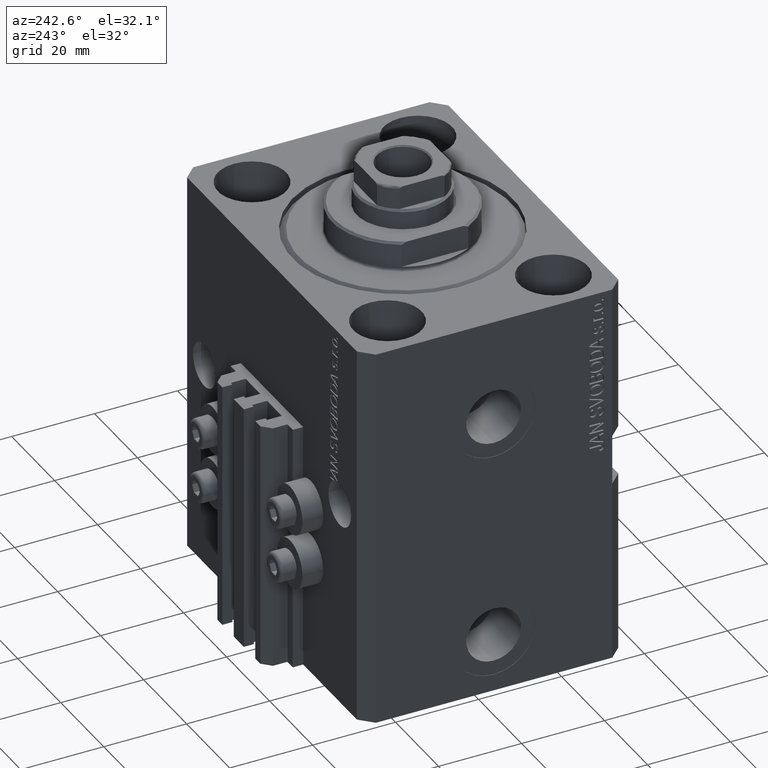
[diagram: clean part render]
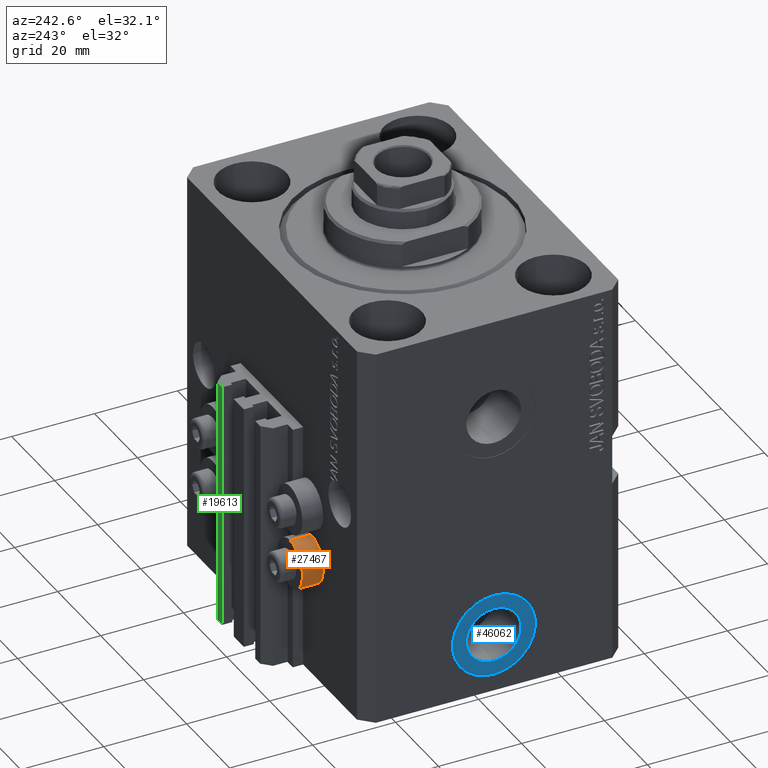
[diagram: same view with three faces highlighted in distinct colors, each labeled with its STEP entity id]
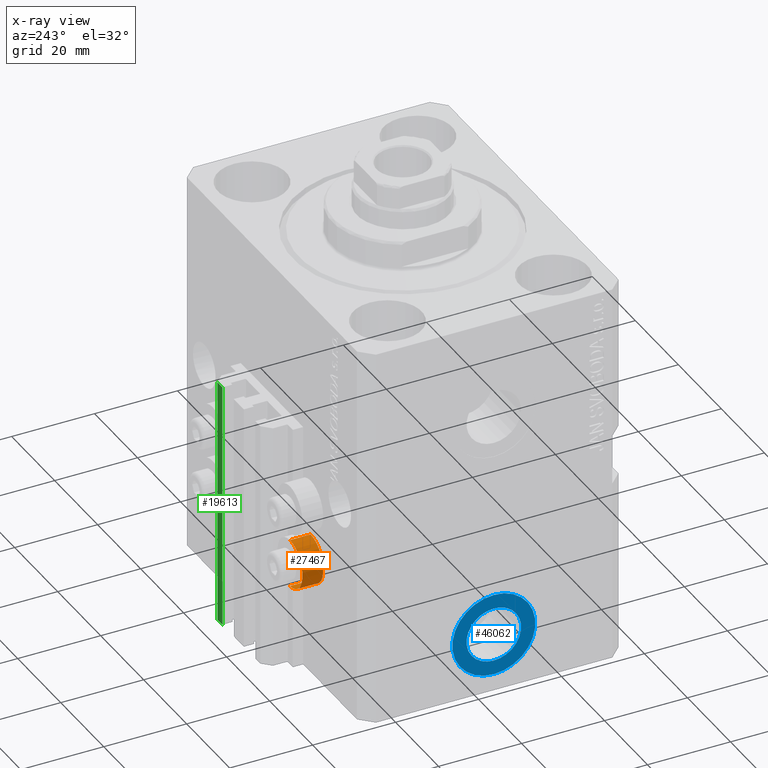
[diagram: x-ray of the same camera — body ghosted, the three highlighted faces saturated]
A machine part, auxiliary view with three faces highlighted in distinct colors.
The next image is the same camera in x-ray (body ghosted, the three faces saturated) — at least one of them is partly hidden behind the body in this view.
Their STEP definitions:

[orange] entity #27467 — the highlighted cylindrical surface (edge-blend (fillet) strip) has radius 5.8 mm, axis along (0, 1, 0).
#340 = ORIENTED_EDGE ( 'NONE', *, *, #27621, .T. ) ;
#3191 = DIRECTION ( 'NONE',  ( 0.000000000000000000, 0.000000000000000000, -1.000000000000000000 ) ) ;
#4283 = AXIS2_PLACEMENT_3D ( 'NONE', #14943, #36385, #3191 ) ;
#6458 = CARTESIAN_POINT ( 'NONE',  ( -18.00000000000000355, 36.49999999996099120, -69.79999999999999716 ) ) ;
#6742 = ORIENTED_EDGE ( 'NONE', *, *, #21574, .F. ) ;
#7576 = EDGE_CURVE ( 'NONE', #13437, #29349, #9294, .T. ) ;
#7731 = VERTEX_POINT ( 'NONE', #34051 ) ;
#8815 = VERTEX_POINT ( 'NONE', #42822 ) ;
#8933 = DIRECTION ( 'NONE',  ( 0.000000000000000000, 0.000000000000000000, -1.000000000000000000 ) ) ;
#9294 = LINE ( 'NONE', #12674, #21343 ) ;
#10115 = CIRCLE ( 'NONE', #26251, 5.799999999999999822 ) ;
#12674 = CARTESIAN_POINT ( 'NONE',  ( -18.00000000000000355, 36.49999999996099120, -69.79999999999999716 ) ) ;
#13394 = ORIENTED_EDGE ( 'NONE', *, *, #39841, .T. ) ;
#13437 = VERTEX_POINT ( 'NONE', #22368 ) ;
#13495 = CIRCLE ( 'NONE', #4283, 5.799999999999999822 ) ;
#13697 = AXIS2_PLACEMENT_3D ( 'NONE', #40041, #17908, #29453 ) ;
#14943 = CARTESIAN_POINT ( 'NONE',  ( -18.00000000000000355, 31.50000000000000000, -64.00000000000000000 ) ) ;
#17530 = VECTOR ( 'NONE', #33418, 1000.000000000000000 ) ;
#17908 = DIRECTION ( 'NONE',  ( 0.000000000000000000, 1.000000000000000000, 0.000000000000000000 ) ) ;
#19999 = CARTESIAN_POINT ( 'NONE',  ( -18.00000000000000355, 36.49999999996099120, -64.00000000000000000 ) ) ;
#20475 = ORIENTED_EDGE ( 'NONE', *, *, #7576, .F. ) ;
#21343 = VECTOR ( 'NONE', #27346, 1000.000000000000000 ) ;
#21574 = EDGE_CURVE ( 'NONE', #7731, #13437, #13495, .T. ) ;
#22368 = CARTESIAN_POINT ( 'NONE',  ( -18.00000000000000355, 31.50000000000000000, -69.79999999999999716 ) ) ;
#25601 = FACE_OUTER_BOUND ( 'NONE', #35134, .T. ) ;
#26196 = CARTESIAN_POINT ( 'NONE',  ( -18.00000000000000355, 36.49999999996099120, -58.20000000000000284 ) ) ;
#26251 = AXIS2_PLACEMENT_3D ( 'NONE', #19999, #38299, #8933 ) ;
#27346 = DIRECTION ( 'NONE',  ( 0.000000000000000000, 1.000000000000000000, 0.000000000000000000 ) ) ;
#27467 = ADVANCED_FACE ( 'NONE', ( #25601 ), #40266, .T. ) ;
#27621 = EDGE_CURVE ( 'NONE', #7731, #8815, #30035, .T. ) ;
#29349 = VERTEX_POINT ( 'NONE', #6458 ) ;
#29453 = DIRECTION ( 'NONE',  ( 0.000000000000000000, 0.000000000000000000, -1.000000000000000000 ) ) ;
#30035 = LINE ( 'NONE', #26196, #17530 ) ;
#33418 = DIRECTION ( 'NONE',  ( 0.000000000000000000, 1.000000000000000000, 0.000000000000000000 ) ) ;
#34051 = CARTESIAN_POINT ( 'NONE',  ( -18.00000000000000355, 31.50000000000000000, -58.20000000000000284 ) ) ;
#35134 = EDGE_LOOP ( 'NONE', ( #6742, #340, #13394, #20475 ) ) ;
#36385 = DIRECTION ( 'NONE',  ( -0.000000000000000000, -1.000000000000000000, -0.000000000000000000 ) ) ;
#38299 = DIRECTION ( 'NONE',  ( -0.000000000000000000, -1.000000000000000000, -0.000000000000000000 ) ) ;
#39841 = EDGE_CURVE ( 'NONE', #8815, #29349, #10115, .T. ) ;
#40041 = CARTESIAN_POINT ( 'NONE',  ( -18.00000000000000355, 36.49999999996099120, -64.00000000000000000 ) ) ;
#40266 = CYLINDRICAL_SURFACE ( 'NONE', #13697, 5.799999999999999822 ) ;
#42822 = CARTESIAN_POINT ( 'NONE',  ( -18.00000000000000355, 36.49999999996099120, -58.20000000000000284 ) ) ;

[blue] entity #46062 — the highlighted planar face has unit normal (-1, 0, 0).
#880 = DIRECTION ( 'NONE',  ( -1.000000000000000000, 0.000000000000000000, 0.000000000000000000 ) ) ;
#1767 = AXIS2_PLACEMENT_3D ( 'NONE', #27166, #38474, #20408 ) ;
#1896 = FACE_BOUND ( 'NONE', #40298, .T. ) ;
#2878 = DIRECTION ( 'NONE',  ( -1.000000000000000000, 0.000000000000000000, 0.000000000000000000 ) ) ;
#3298 = VERTEX_POINT ( 'NONE', #8473 ) ;
#5277 = FACE_OUTER_BOUND ( 'NONE', #6057, .T. ) ;
#5308 = CARTESIAN_POINT ( 'NONE',  ( -42.39999999999999858, -9.674709713264090904E-15, -79.00000000000000000 ) ) ;
#5715 = DIRECTION ( 'NONE',  ( -1.000000000000000000, 0.000000000000000000, 0.000000000000000000 ) ) ;
#5784 = DIRECTION ( 'NONE',  ( 0.000000000000000000, 0.000000000000000000, 1.000000000000000000 ) ) ;
#5951 = DIRECTION ( 'NONE',  ( 0.000000000000000000, 0.000000000000000000, 1.000000000000000000 ) ) ;
#6057 = EDGE_LOOP ( 'NONE', ( #20281, #27793 ) ) ;
#6388 = ORIENTED_EDGE ( 'NONE', *, *, #16810, .F. ) ;
#6655 = EDGE_CURVE ( 'NONE', #3298, #16788, #25912, .T. ) ;
#8473 = CARTESIAN_POINT ( 'NONE',  ( -42.39999999999999858, -8.450062914116737844E-15, -89.00000000000000000 ) ) ;
#11486 = CIRCLE ( 'NONE', #22977, 9.999999999999994671 ) ;
#12724 = PLANE ( 'NONE',  #1767 ) ;
#12739 = VERTEX_POINT ( 'NONE', #39896 ) ;
#16788 = VERTEX_POINT ( 'NONE', #20929 ) ;
#16810 = EDGE_CURVE ( 'NONE', #27642, #12739, #33958, .T. ) ;
#20281 = ORIENTED_EDGE ( 'NONE', *, *, #34620, .T. ) ;
#20408 = DIRECTION ( 'NONE',  ( 0.000000000000000000, 0.000000000000000000, 1.000000000000000000 ) ) ;
#20929 = CARTESIAN_POINT ( 'NONE',  ( -42.39999999999999858, -9.674709713264090904E-15, -69.00000000000000000 ) ) ;
#22977 = AXIS2_PLACEMENT_3D ( 'NONE', #47248, #5715, #5951 ) ;
#25912 = CIRCLE ( 'NONE', #31324, 9.999999999999994671 ) ;
#26026 = EDGE_CURVE ( 'NONE', #12739, #27642, #36706, .T. ) ;
#27166 = CARTESIAN_POINT ( 'NONE',  ( -42.39999999999999858, -9.674709713264090904E-15, -79.00000000000000000 ) ) ;
#27642 = VERTEX_POINT ( 'NONE', #29562 ) ;
#27793 = ORIENTED_EDGE ( 'NONE', *, *, #6655, .T. ) ;
#27905 = DIRECTION ( 'NONE',  ( 0.000000000000000000, 0.000000000000000000, 1.000000000000000000 ) ) ;
#29562 = CARTESIAN_POINT ( 'NONE',  ( -42.39999999999999858, -8.868892119425131862E-15, -85.57999999999999829 ) ) ;
#31050 = DIRECTION ( 'NONE',  ( -1.000000000000000000, 0.000000000000000000, 0.000000000000000000 ) ) ;
#31324 = AXIS2_PLACEMENT_3D ( 'NONE', #41044, #880, #41285 ) ;
#33281 = ORIENTED_EDGE ( 'NONE', *, *, #26026, .F. ) ;
#33958 = CIRCLE ( 'NONE', #44721, 6.580000000000002736 ) ;
#34411 = AXIS2_PLACEMENT_3D ( 'NONE', #46886, #2878, #27905 ) ;
#34620 = EDGE_CURVE ( 'NONE', #16788, #3298, #11486, .T. ) ;
#36706 = CIRCLE ( 'NONE', #34411, 6.580000000000002736 ) ;
#38474 = DIRECTION ( 'NONE',  ( -1.000000000000000000, 0.000000000000000000, 0.000000000000000000 ) ) ;
#39896 = CARTESIAN_POINT ( 'NONE',  ( -42.39999999999999858, -9.674709713264090904E-15, -72.42000000000000171 ) ) ;
#40298 = EDGE_LOOP ( 'NONE', ( #33281, #6388 ) ) ;
#41044 = CARTESIAN_POINT ( 'NONE',  ( -42.39999999999999858, -9.674709713264090904E-15, -79.00000000000000000 ) ) ;
#41285 = DIRECTION ( 'NONE',  ( 0.000000000000000000, 0.000000000000000000, 1.000000000000000000 ) ) ;
#44721 = AXIS2_PLACEMENT_3D ( 'NONE', #5308, #31050, #5784 ) ;
#46062 = ADVANCED_FACE ( 'NONE', ( #1896, #5277 ), #12724, .T. ) ;
#46886 = CARTESIAN_POINT ( 'NONE',  ( -42.39999999999999858, -9.674709713264090904E-15, -79.00000000000000000 ) ) ;
#47248 = CARTESIAN_POINT ( 'NONE',  ( -42.39999999999999858, -9.674709713264090904E-15, -79.00000000000000000 ) ) ;

[green] entity #19613 — the highlighted planar face has unit normal (0, 1, 0).
#1907 = CARTESIAN_POINT ( 'NONE',  ( 9.999999999999998224, 39.50000000000002132, -33.00000000000000000 ) ) ;
#2479 = CARTESIAN_POINT ( 'NONE',  ( 9.999999999999998224, 39.50000000000002132, -33.00000000000000000 ) ) ;
#2695 = LINE ( 'NONE', #10378, #10771 ) ;
#5685 = EDGE_LOOP ( 'NONE', ( #26497, #43907, #17698, #7724 ) ) ;
#6544 = DIRECTION ( 'NONE',  ( 0.000000000000000000, 0.000000000000000000, 1.000000000000000000 ) ) ;
#7724 = ORIENTED_EDGE ( 'NONE', *, *, #7785, .T. ) ;
#7785 = EDGE_CURVE ( 'NONE', #13150, #28281, #8286, .T. ) ;
#8286 = LINE ( 'NONE', #15739, #43630 ) ;
#8650 = EDGE_CURVE ( 'NONE', #12567, #28281, #41986, .T. ) ;
#10378 = CARTESIAN_POINT ( 'NONE',  ( 9.999999999999998224, 39.50000000000002132, -93.00000000000000000 ) ) ;
#10588 = VERTEX_POINT ( 'NONE', #37880 ) ;
#10771 = VECTOR ( 'NONE', #6544, 1000.000000000000000 ) ;
#12567 = VERTEX_POINT ( 'NONE', #1907 ) ;
#13150 = VERTEX_POINT ( 'NONE', #46231 ) ;
#13153 = CARTESIAN_POINT ( 'NONE',  ( 9.999999999999998224, 39.50000000000002132, -93.00000000000000000 ) ) ;
#13321 = EDGE_CURVE ( 'NONE', #10588, #12567, #2695, .T. ) ;
#15739 = CARTESIAN_POINT ( 'NONE',  ( 7.649999999999998579, 39.50000000000002132, -93.00000000000000000 ) ) ;
#16726 = CARTESIAN_POINT ( 'NONE',  ( 7.649999999999998579, 39.50000000000002132, -33.00000000000000000 ) ) ;
#17668 = CARTESIAN_POINT ( 'NONE',  ( 9.999999999999998224, 39.50000000000002132, -93.00000000000000000 ) ) ;
#17698 = ORIENTED_EDGE ( 'NONE', *, *, #20154, .T. ) ;
#19613 = ADVANCED_FACE ( 'NONE', ( #21080 ), #38658, .T. ) ;
#20119 = DIRECTION ( 'NONE',  ( 0.000000000000000000, 0.000000000000000000, 1.000000000000000000 ) ) ;
#20154 = EDGE_CURVE ( 'NONE', #10588, #13150, #35013, .T. ) ;
#21080 = FACE_OUTER_BOUND ( 'NONE', #5685, .T. ) ;
#26497 = ORIENTED_EDGE ( 'NONE', *, *, #8650, .F. ) ;
#28028 = DIRECTION ( 'NONE',  ( -1.000000000000000000, 0.000000000000000000, 0.000000000000000000 ) ) ;
#28281 = VERTEX_POINT ( 'NONE', #16726 ) ;
#29074 = VECTOR ( 'NONE', #43356, 1000.000000000000000 ) ;
#33407 = VECTOR ( 'NONE', #28028, 1000.000000000000000 ) ;
#35013 = LINE ( 'NONE', #17668, #33407 ) ;
#37880 = CARTESIAN_POINT ( 'NONE',  ( 9.999999999999998224, 39.50000000000002132, -93.00000000000000000 ) ) ;
#38658 = PLANE ( 'NONE',  #39576 ) ;
#39576 = AXIS2_PLACEMENT_3D ( 'NONE', #13153, #42724, #20119 ) ;
#41986 = LINE ( 'NONE', #2479, #29074 ) ;
#42724 = DIRECTION ( 'NONE',  ( 0.000000000000000000, 1.000000000000000000, -0.000000000000000000 ) ) ;
#43356 = DIRECTION ( 'NONE',  ( -1.000000000000000000, 0.000000000000000000, 0.000000000000000000 ) ) ;
#43630 = VECTOR ( 'NONE', #44130, 1000.000000000000000 ) ;
#43907 = ORIENTED_EDGE ( 'NONE', *, *, #13321, .F. ) ;
#44130 = DIRECTION ( 'NONE',  ( 0.000000000000000000, 0.000000000000000000, 1.000000000000000000 ) ) ;
#46231 = CARTESIAN_POINT ( 'NONE',  ( 7.649999999999998579, 39.50000000000002132, -93.00000000000000000 ) ) ;